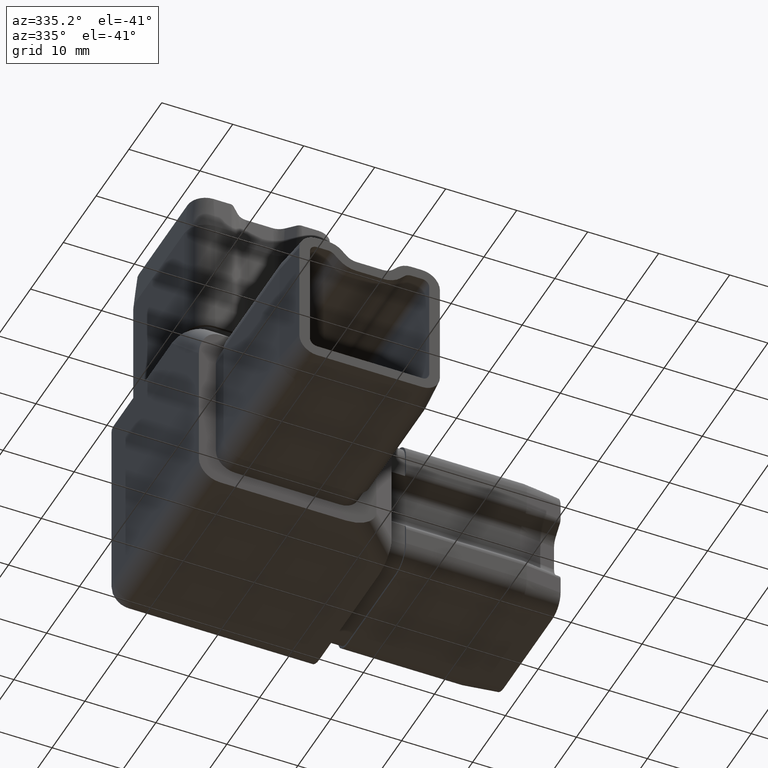
[diagram: clean part render]
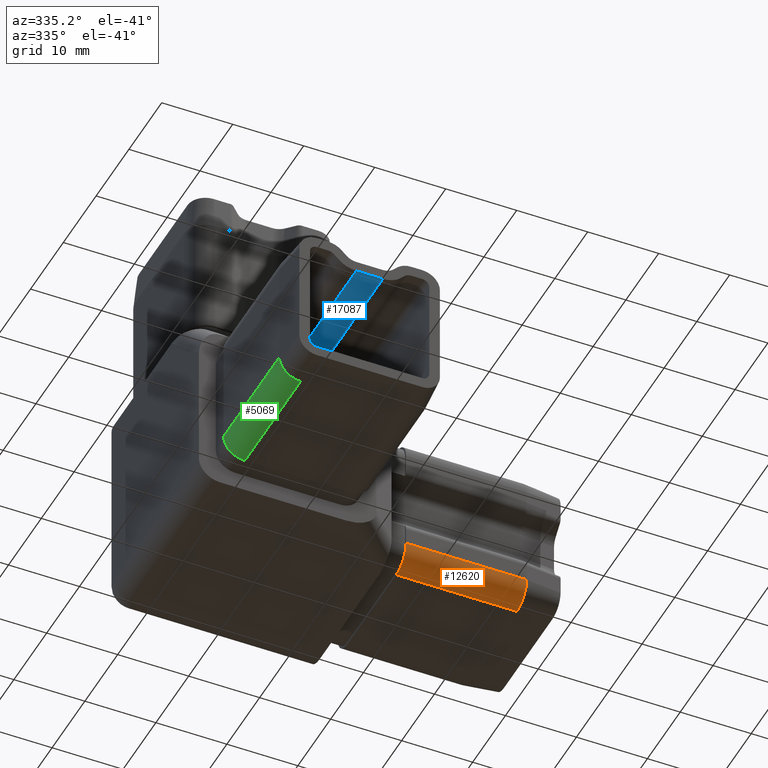
[diagram: same view with three faces highlighted in distinct colors, each labeled with its STEP entity id]
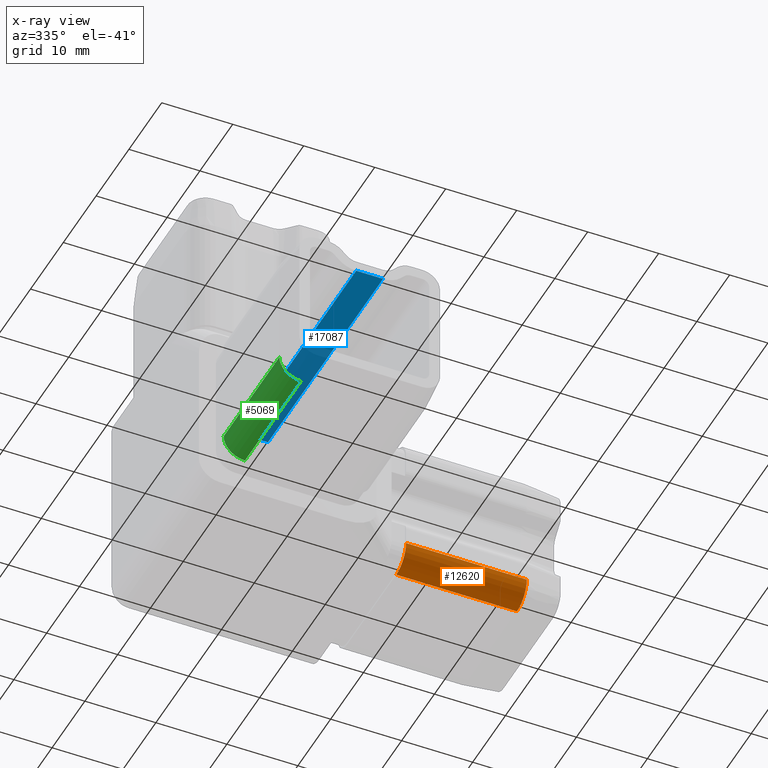
[diagram: x-ray of the same camera — body ghosted, the three highlighted faces saturated]
A machine part, auxiliary view with three faces highlighted in distinct colors.
The next image is the same camera in x-ray (body ghosted, the three faces saturated) — at least one of them is partly hidden behind the body in this view.
Their STEP definitions:

[orange] entity #12620 — the highlighted cylindrical surface (edge-blend (fillet) strip) has radius 3 mm, axis along (-1, -0, 0).
#11 = EDGE_CURVE ( 'NONE', #3283, #1894, #97, .T. ) ;
#97 = CIRCLE ( 'NONE', #322, 2.999999999999999100 ) ;
#156 = DIRECTION ( 'NONE',  ( -1.000000000000000000, -1.196361017915039200E-016, 4.440892098500625200E-016 ) ) ;
#302 = ORIENTED_EDGE ( 'NONE', *, *, #3647, .F. ) ;
#322 = AXIS2_PLACEMENT_3D ( 'NONE', #10165, #12914, #14361 ) ;
#492 = CARTESIAN_POINT ( 'NONE',  ( 34.50000000000001400, -8.399999999999993200, -9.400000000000028800 ) ) ;
#774 = DIRECTION ( 'NONE',  ( -1.000000000000000000, -1.196361017915039200E-016, 4.440892098500625200E-016 ) ) ;
#1894 = VERTEX_POINT ( 'NONE', #7203 ) ;
#1974 = EDGE_CURVE ( 'NONE', #8371, #7557, #4051, .T. ) ;
#2382 = ORIENTED_EDGE ( 'NONE', *, *, #1974, .T. ) ;
#3283 = VERTEX_POINT ( 'NONE', #492 ) ;
#3296 = CARTESIAN_POINT ( 'NONE',  ( 39.50000000000000000, -8.399999999999991500, -9.400000000000025200 ) ) ;
#3647 = EDGE_CURVE ( 'NONE', #1894, #7557, #16673, .T. ) ;
#4051 = CIRCLE ( 'NONE', #5087, 2.999999999999999100 ) ;
#4418 = LINE ( 'NONE', #3296, #5273 ) ;
#4924 = DIRECTION ( 'NONE',  ( -1.000000000000000000, -1.196361017915039200E-016, 4.440892098500625200E-016 ) ) ;
#5087 = AXIS2_PLACEMENT_3D ( 'NONE', #12259, #6825, #16276 ) ;
#5273 = VECTOR ( 'NONE', #774, 1000.000000000000000 ) ;
#6815 = FACE_OUTER_BOUND ( 'NONE', #16487, .T. ) ;
#6825 = DIRECTION ( 'NONE',  ( 1.000000000000000000, 1.196361017915039200E-016, -4.440892098500625200E-016 ) ) ;
#7017 = CYLINDRICAL_SURFACE ( 'NONE', #16979, 3.000000000000000900 ) ;
#7203 = CARTESIAN_POINT ( 'NONE',  ( 34.50000000000000700, -5.399999999999986100, -12.40000000000002000 ) ) ;
#7253 = VECTOR ( 'NONE', #4924, 1000.000000000000000 ) ;
#7332 = CARTESIAN_POINT ( 'NONE',  ( 17.49999999999999600, -8.399999999999995000, -9.400000000000018100 ) ) ;
#7557 = VERTEX_POINT ( 'NONE', #13770 ) ;
#8371 = VERTEX_POINT ( 'NONE', #7332 ) ;
#9664 = DIRECTION ( 'NONE',  ( 0.0000000000000000000, 0.0000000000000000000, 1.000000000000000000 ) ) ;
#10165 = CARTESIAN_POINT ( 'NONE',  ( 34.50000000000001400, -5.399999999999993200, -9.400000000000021700 ) ) ;
#10229 = ORIENTED_EDGE ( 'NONE', *, *, #13369, .T. ) ;
#11578 = CARTESIAN_POINT ( 'NONE',  ( 39.50000000000000000, -5.399999999999991500, -12.40000000000002300 ) ) ;
#12259 = CARTESIAN_POINT ( 'NONE',  ( 17.49999999999999600, -5.399999999999995000, -9.400000000000014600 ) ) ;
#12620 = ADVANCED_FACE ( 'NONE', ( #6815 ), #7017, .T. ) ;
#12914 = DIRECTION ( 'NONE',  ( 1.000000000000000000, 1.196361017915039200E-016, -4.440892098500625200E-016 ) ) ;
#13369 = EDGE_CURVE ( 'NONE', #3283, #8371, #4418, .T. ) ;
#13770 = CARTESIAN_POINT ( 'NONE',  ( 17.49999999999999600, -5.399999999999991500, -12.40000000000001300 ) ) ;
#14361 = DIRECTION ( 'NONE',  ( 0.0000000000000000000, 0.0000000000000000000, -1.000000000000000000 ) ) ;
#15189 = CARTESIAN_POINT ( 'NONE',  ( 39.50000000000000000, -5.399999999999992400, -9.400000000000023400 ) ) ;
#16276 = DIRECTION ( 'NONE',  ( 0.0000000000000000000, 0.0000000000000000000, -1.000000000000000000 ) ) ;
#16487 = EDGE_LOOP ( 'NONE', ( #302, #16980, #10229, #2382 ) ) ;
#16673 = LINE ( 'NONE', #11578, #7253 ) ;
#16979 = AXIS2_PLACEMENT_3D ( 'NONE', #15189, #156, #9664 ) ;
#16980 = ORIENTED_EDGE ( 'NONE', *, *, #11, .F. ) ;

[blue] entity #17087 — the highlighted planar face has unit normal (-0, 0, -1).
#20 = VECTOR ( 'NONE', #2088, 1000.000000000000000 ) ;
#682 = CARTESIAN_POINT ( 'NONE',  ( -3.878679656440344300, -4.399999999999997700, 4.399999999999997700 ) ) ;
#1697 = CARTESIAN_POINT ( 'NONE',  ( -0.1213203435596454200, -39.50000000000000000, 4.399999999999995900 ) ) ;
#2088 = DIRECTION ( 'NONE',  ( 0.0000000000000000000, -1.000000000000000000, -1.196361017915039700E-016 ) ) ;
#2178 = VERTEX_POINT ( 'NONE', #1697 ) ;
#2514 = EDGE_CURVE ( 'NONE', #16528, #2646, #4873, .T. ) ;
#2646 = VERTEX_POINT ( 'NONE', #5892 ) ;
#4031 = ORIENTED_EDGE ( 'NONE', *, *, #12796, .T. ) ;
#4873 = LINE ( 'NONE', #11881, #16239 ) ;
#5009 = LINE ( 'NONE', #6647, #13799 ) ;
#5179 = ORIENTED_EDGE ( 'NONE', *, *, #14863, .T. ) ;
#5789 = EDGE_LOOP ( 'NONE', ( #15365, #5179, #17410, #4031 ) ) ;
#5892 = CARTESIAN_POINT ( 'NONE',  ( -3.878679656440358100, -39.50000000000000000, 4.399999999999996800 ) ) ;
#6170 = FACE_OUTER_BOUND ( 'NONE', #5789, .T. ) ;
#6515 = DIRECTION ( 'NONE',  ( -4.616868740846666300E-016, 1.196361017915039700E-016, -1.000000000000000000 ) ) ;
#6582 = CARTESIAN_POINT ( 'NONE',  ( -3.878679656440344300, -4.399999999999997700, 4.399999999999997700 ) ) ;
#6647 = CARTESIAN_POINT ( 'NONE',  ( -0.1213203435596454200, -39.50000000000000000, 4.399999999999995900 ) ) ;
#7888 = DIRECTION ( 'NONE',  ( 0.0000000000000000000, -1.000000000000000000, -1.196361017915039700E-016 ) ) ;
#8380 = DIRECTION ( 'NONE',  ( -1.000000000000000000, 0.0000000000000000000, 2.308434370423333200E-016 ) ) ;
#8879 = EDGE_CURVE ( 'NONE', #15644, #2178, #13434, .T. ) ;
#9262 = PLANE ( 'NONE',  #14265 ) ;
#9659 = CARTESIAN_POINT ( 'NONE',  ( -3.878679656440358100, -4.399999999999997700, 4.400000000000001200 ) ) ;
#10193 = DIRECTION ( 'NONE',  ( 1.000000000000000000, 4.616868740846666300E-016, -4.616868740846665300E-016 ) ) ;
#10205 = VECTOR ( 'NONE', #10193, 1000.000000000000000 ) ;
#11881 = CARTESIAN_POINT ( 'NONE',  ( -3.878679656440358100, -4.399999999999997700, 4.400000000000001200 ) ) ;
#12796 = EDGE_CURVE ( 'NONE', #16528, #15644, #13853, .T. ) ;
#13434 = LINE ( 'NONE', #15853, #20 ) ;
#13799 = VECTOR ( 'NONE', #8380, 1000.000000000000000 ) ;
#13853 = LINE ( 'NONE', #682, #10205 ) ;
#14265 = AXIS2_PLACEMENT_3D ( 'NONE', #6582, #6515, #17572 ) ;
#14863 = EDGE_CURVE ( 'NONE', #2178, #2646, #5009, .T. ) ;
#15365 = ORIENTED_EDGE ( 'NONE', *, *, #8879, .T. ) ;
#15644 = VERTEX_POINT ( 'NONE', #15708 ) ;
#15708 = CARTESIAN_POINT ( 'NONE',  ( -0.1213203435596463000, -4.399999999999995900, 4.399999999999995900 ) ) ;
#15853 = CARTESIAN_POINT ( 'NONE',  ( -0.1213203435596463000, -4.399999999999995900, 4.399999999999995900 ) ) ;
#16239 = VECTOR ( 'NONE', #7888, 1000.000000000000000 ) ;
#16528 = VERTEX_POINT ( 'NONE', #9659 ) ;
#17087 = ADVANCED_FACE ( 'NONE', ( #6170 ), #9262, .T. ) ;
#17410 = ORIENTED_EDGE ( 'NONE', *, *, #2514, .F. ) ;
#17572 = DIRECTION ( 'NONE',  ( -1.000000000000000000, 0.0000000000000000000, 4.616868740846666300E-016 ) ) ;

[green] entity #5069 — the highlighted cylindrical surface (edge-blend (fillet) strip) has radius 3 mm, axis along (-0, 1, -0).
#413 = CARTESIAN_POINT ( 'NONE',  ( -9.400000000000005700, -34.50000000000000000, -12.40000000000000200 ) ) ;
#599 = DIRECTION ( 'NONE',  ( 0.0000000000000000000, 0.0000000000000000000, 1.000000000000000000 ) ) ;
#662 = CARTESIAN_POINT ( 'NONE',  ( -9.400000000000005700, -17.49999999999999600, -9.400000000000002100 ) ) ;
#1226 = VECTOR ( 'NONE', #6546, 1000.000000000000000 ) ;
#1797 = DIRECTION ( 'NONE',  ( 0.0000000000000000000, 0.0000000000000000000, 1.000000000000000000 ) ) ;
#2919 = CARTESIAN_POINT ( 'NONE',  ( -9.400000000000005700, -34.50000000000000000, -9.400000000000002100 ) ) ;
#2983 = DIRECTION ( 'NONE',  ( 0.0000000000000000000, 0.0000000000000000000, 1.000000000000000000 ) ) ;
#3253 = AXIS2_PLACEMENT_3D ( 'NONE', #662, #17053, #599 ) ;
#4132 = EDGE_CURVE ( 'NONE', #6523, #5406, #12146, .T. ) ;
#4294 = CARTESIAN_POINT ( 'NONE',  ( -12.40000000000000400, -34.50000000000000000, -9.399999999999998600 ) ) ;
#5069 = ADVANCED_FACE ( 'NONE', ( #17256 ), #12129, .T. ) ;
#5406 = VERTEX_POINT ( 'NONE', #8597 ) ;
#6084 = DIRECTION ( 'NONE',  ( -0.0000000000000000000, 1.000000000000000000, -0.0000000000000000000 ) ) ;
#6094 = EDGE_CURVE ( 'NONE', #8973, #5406, #7826, .T. ) ;
#6523 = VERTEX_POINT ( 'NONE', #8749 ) ;
#6546 = DIRECTION ( 'NONE',  ( -0.0000000000000000000, 1.000000000000000000, -0.0000000000000000000 ) ) ;
#6699 = VECTOR ( 'NONE', #6084, 1000.000000000000000 ) ;
#7826 = LINE ( 'NONE', #10672, #1226 ) ;
#8597 = CARTESIAN_POINT ( 'NONE',  ( -12.40000000000000200, -17.49999999999999600, -9.400000000000002100 ) ) ;
#8749 = CARTESIAN_POINT ( 'NONE',  ( -9.400000000000005700, -17.49999999999999600, -12.40000000000000400 ) ) ;
#8973 = VERTEX_POINT ( 'NONE', #4294 ) ;
#9791 = DIRECTION ( 'NONE',  ( -0.0000000000000000000, 1.000000000000000000, -0.0000000000000000000 ) ) ;
#9910 = LINE ( 'NONE', #11550, #6699 ) ;
#10672 = CARTESIAN_POINT ( 'NONE',  ( -12.40000000000000200, -39.50000000000000000, -9.400000000000002100 ) ) ;
#11173 = ORIENTED_EDGE ( 'NONE', *, *, #15936, .F. ) ;
#11180 = CARTESIAN_POINT ( 'NONE',  ( -9.400000000000005700, -39.50000000000000000, -9.400000000000002100 ) ) ;
#11262 = CIRCLE ( 'NONE', #15621, 2.999999999999999100 ) ;
#11550 = CARTESIAN_POINT ( 'NONE',  ( -9.400000000000005700, -39.50000000000000000, -12.40000000000000400 ) ) ;
#12129 = CYLINDRICAL_SURFACE ( 'NONE', #14742, 2.999999999999998200 ) ;
#12146 = CIRCLE ( 'NONE', #3253, 3.000000000000000900 ) ;
#13130 = ORIENTED_EDGE ( 'NONE', *, *, #6094, .T. ) ;
#13972 = ORIENTED_EDGE ( 'NONE', *, *, #4132, .F. ) ;
#14170 = EDGE_CURVE ( 'NONE', #15083, #8973, #11262, .T. ) ;
#14698 = EDGE_LOOP ( 'NONE', ( #15855, #13130, #13972, #11173 ) ) ;
#14742 = AXIS2_PLACEMENT_3D ( 'NONE', #11180, #16621, #1797 ) ;
#15083 = VERTEX_POINT ( 'NONE', #413 ) ;
#15621 = AXIS2_PLACEMENT_3D ( 'NONE', #2919, #9791, #2983 ) ;
#15855 = ORIENTED_EDGE ( 'NONE', *, *, #14170, .T. ) ;
#15936 = EDGE_CURVE ( 'NONE', #15083, #6523, #9910, .T. ) ;
#16621 = DIRECTION ( 'NONE',  ( -0.0000000000000000000, 1.000000000000000000, -0.0000000000000000000 ) ) ;
#17053 = DIRECTION ( 'NONE',  ( -0.0000000000000000000, 1.000000000000000000, -0.0000000000000000000 ) ) ;
#17256 = FACE_OUTER_BOUND ( 'NONE', #14698, .T. ) ;